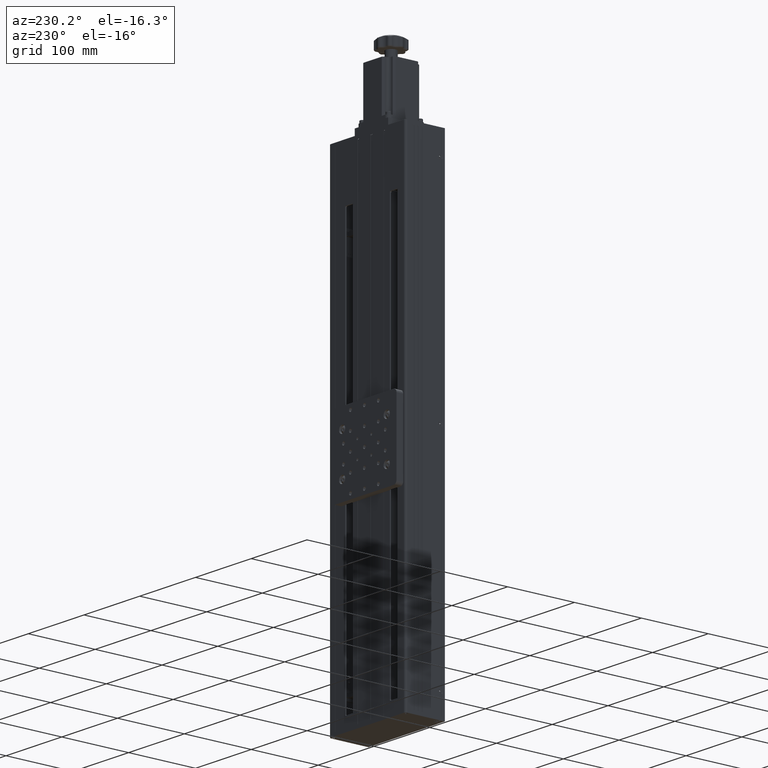
[diagram: clean part render]
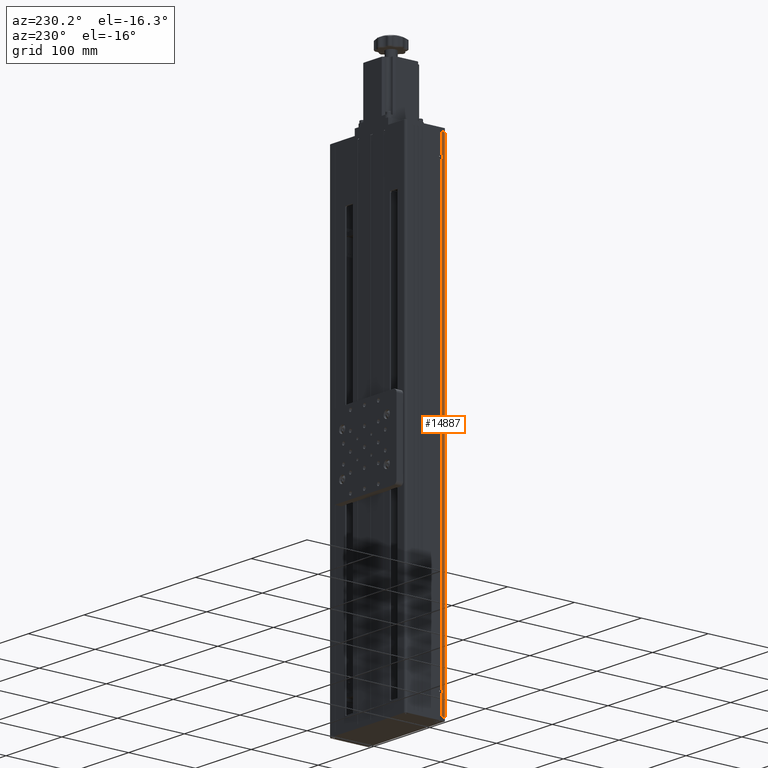
[diagram: same view with one face highlighted and labeled with its STEP entity id]
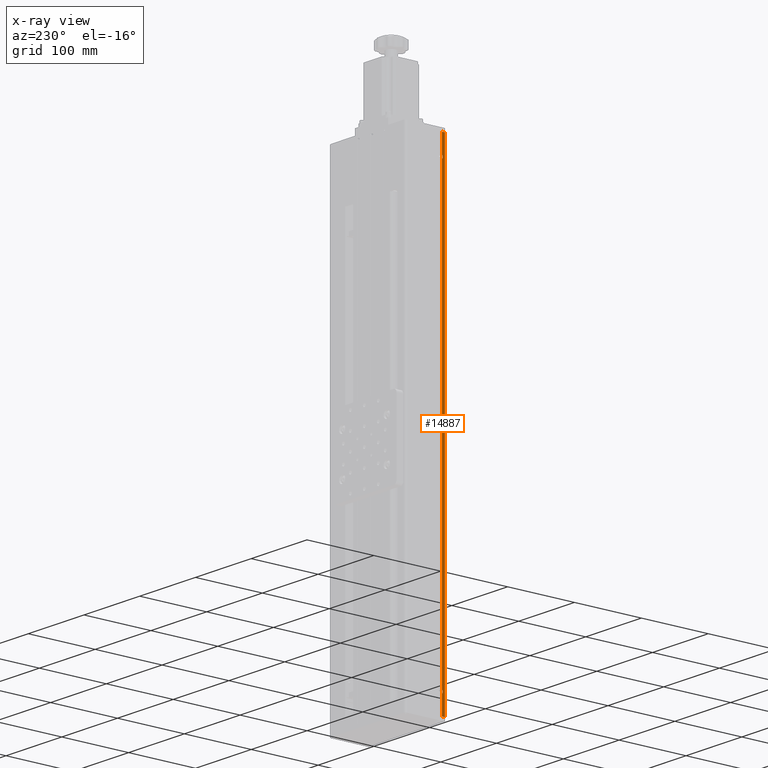
[diagram: x-ray of the same camera — body ghosted, the highlighted face saturated]
A machine part, auxiliary view. The second image highlights one B-rep face of the part: STEP entity #14887.
The next image is the same camera in x-ray: the body ghosted, the highlighted face saturated — about 0% of this face is hidden behind the body in this view.
In plain terms, the highlighted planar face has unit normal (-1, 0, 0).
Its self-contained STEP definition (entity closure, byte-faithful):
#1223 = VECTOR ( 'NONE', #38622, 1000.000000000000000 ) ;
#1336 = VERTEX_POINT ( 'NONE', #32239 ) ;
#1612 = CARTESIAN_POINT ( 'NONE',  ( -197.2356926832513000, -25.17012639631455800, -598.8342676332768000 ) ) ;
#1953 = DIRECTION ( 'NONE',  ( -1.000000000000000000, -0.0000000000000000000, -0.0000000000000000000 ) ) ;
#2036 = ORIENTED_EDGE ( 'NONE', *, *, #26629, .T. ) ;
#2300 = CIRCLE ( 'NONE', #31036, 3.149999999999986100 ) ;
#2384 = VERTEX_POINT ( 'NONE', #16938 ) ;
#2432 = ORIENTED_EDGE ( 'NONE', *, *, #8661, .T. ) ;
#3513 = CARTESIAN_POINT ( 'NONE',  ( -197.2356926832513000, -25.17012639631455800, 101.1657323667232800 ) ) ;
#3519 = CARTESIAN_POINT ( 'NONE',  ( -197.2356926832513000, -20.42012639631455800, 68.54657219598142600 ) ) ;
#4860 = DIRECTION ( 'NONE',  ( 0.0000000000000000000, 1.000000000000000000, 0.0000000000000000000 ) ) ;
#5266 = AXIS2_PLACEMENT_3D ( 'NONE', #5757, #28157, #9004 ) ;
#5386 = DIRECTION ( 'NONE',  ( -0.0000000000000000000, -0.0000000000000000000, -1.000000000000000000 ) ) ;
#5757 = CARTESIAN_POINT ( 'NONE',  ( -197.2356926832513000, -18.67012639631456100, -568.8342676332766800 ) ) ;
#6689 = DIRECTION ( 'NONE',  ( 0.0000000000000000000, 0.0000000000000000000, 1.000000000000000000 ) ) ;
#7077 = EDGE_CURVE ( 'NONE', #35715, #2384, #2300, .T. ) ;
#7163 = CARTESIAN_POINT ( 'NONE',  ( -197.2356926832513000, -20.42012639631455800, 101.1657323667232800 ) ) ;
#7345 = LINE ( 'NONE', #25291, #14921 ) ;
#7448 = FACE_OUTER_BOUND ( 'NONE', #8673, .T. ) ;
#7467 = ORIENTED_EDGE ( 'NONE', *, *, #24274, .T. ) ;
#7769 = VECTOR ( 'NONE', #5386, 1000.000000000000000 ) ;
#8661 = EDGE_CURVE ( 'NONE', #22543, #18089, #35274, .T. ) ;
#8673 = EDGE_LOOP ( 'NONE', ( #16341, #24804, #37469, #34445, #2432, #7467, #23659, #29908, #40982, #2036 ) ) ;
#9004 = DIRECTION ( 'NONE',  ( 0.0000000000000000000, 0.0000000000000000000, 1.000000000000000000 ) ) ;
#9510 = CARTESIAN_POINT ( 'NONE',  ( -197.2356926832513000, -20.42012639631455800, 101.1657323667232800 ) ) ;
#10418 = DIRECTION ( 'NONE',  ( 0.0000000000000000000, 0.0000000000000000000, 1.000000000000000000 ) ) ;
#12579 = DIRECTION ( 'NONE',  ( -1.000000000000000000, 0.0000000000000000000, 0.0000000000000000000 ) ) ;
#12742 = DIRECTION ( 'NONE',  ( -0.0000000000000000000, -0.0000000000000000000, -1.000000000000000000 ) ) ;
#12836 = CARTESIAN_POINT ( 'NONE',  ( -197.2356926832513000, -20.42012639631455800, -251.4534278040184700 ) ) ;
#13493 = VECTOR ( 'NONE', #39250, 1000.000000000000000 ) ;
#13533 = EDGE_CURVE ( 'NONE', #32910, #1336, #23252, .T. ) ;
#13776 = VECTOR ( 'NONE', #4860, 1000.000000000000000 ) ;
#14327 = VERTEX_POINT ( 'NONE', #31928 ) ;
#14887 = ADVANCED_FACE ( 'NONE', ( #7448 ), #28959, .T. ) ;
#14921 = VECTOR ( 'NONE', #28661, 1000.000000000000000 ) ;
#14936 = CARTESIAN_POINT ( 'NONE',  ( -197.2356926832513000, -20.42012639631455800, 101.1657323667232800 ) ) ;
#16306 = CARTESIAN_POINT ( 'NONE',  ( -197.2356926832513000, -18.67012639631456100, -248.8342676332767100 ) ) ;
#16322 = LINE ( 'NONE', #14936, #7769 ) ;
#16341 = ORIENTED_EDGE ( 'NONE', *, *, #41061, .F. ) ;
#16555 = VERTEX_POINT ( 'NONE', #3519 ) ;
#16938 = CARTESIAN_POINT ( 'NONE',  ( -197.2356926832513000, -20.42012639631455800, -246.2151074625349700 ) ) ;
#18089 = VERTEX_POINT ( 'NONE', #7163 ) ;
#18164 = CARTESIAN_POINT ( 'NONE',  ( -197.2356926832513000, -25.17012639631455800, 101.1657323667232800 ) ) ;
#19576 = VERTEX_POINT ( 'NONE', #41319 ) ;
#20318 = LINE ( 'NONE', #32996, #37326 ) ;
#20939 = CARTESIAN_POINT ( 'NONE',  ( -197.2356926832513000, -25.17012639631455800, -598.8342676332768000 ) ) ;
#20974 = LINE ( 'NONE', #36034, #13493 ) ;
#21174 = CARTESIAN_POINT ( 'NONE',  ( -197.2356926832513000, -18.67012639631463600, 71.16573236672324800 ) ) ;
#22022 = CARTESIAN_POINT ( 'NONE',  ( -197.2356926832513000, -25.17012639631455800, 101.1657323667232800 ) ) ;
#22543 = VERTEX_POINT ( 'NONE', #18164 ) ;
#23252 = LINE ( 'NONE', #1612, #13776 ) ;
#23659 = ORIENTED_EDGE ( 'NONE', *, *, #31775, .F. ) ;
#23736 = CIRCLE ( 'NONE', #33329, 3.149999999999999900 ) ;
#24199 = VERTEX_POINT ( 'NONE', #37909 ) ;
#24274 = EDGE_CURVE ( 'NONE', #18089, #14327, #7345, .T. ) ;
#24342 = DIRECTION ( 'NONE',  ( 0.0000000000000000000, 0.0000000000000000000, 1.000000000000000000 ) ) ;
#24804 = ORIENTED_EDGE ( 'NONE', *, *, #33748, .T. ) ;
#25291 = CARTESIAN_POINT ( 'NONE',  ( -197.2356926832513000, -20.42012639631455800, 101.1657323667232800 ) ) ;
#25562 = AXIS2_PLACEMENT_3D ( 'NONE', #3513, #25851, #6689 ) ;
#25851 = DIRECTION ( 'NONE',  ( -1.000000000000000000, 0.0000000000000000000, 0.0000000000000000000 ) ) ;
#26629 = EDGE_CURVE ( 'NONE', #35715, #24199, #20974, .T. ) ;
#28157 = DIRECTION ( 'NONE',  ( -1.000000000000000000, -0.0000000000000000000, -0.0000000000000000000 ) ) ;
#28661 = DIRECTION ( 'NONE',  ( -0.0000000000000000000, -0.0000000000000000000, -1.000000000000000000 ) ) ;
#28959 = PLANE ( 'NONE',  #25562 ) ;
#29287 = VECTOR ( 'NONE', #12742, 1000.000000000000000 ) ;
#29908 = ORIENTED_EDGE ( 'NONE', *, *, #40614, .T. ) ;
#30298 = LINE ( 'NONE', #9510, #29287 ) ;
#31036 = AXIS2_PLACEMENT_3D ( 'NONE', #16306, #12579, #10418 ) ;
#31775 = EDGE_CURVE ( 'NONE', #16555, #14327, #23736, .T. ) ;
#31928 = CARTESIAN_POINT ( 'NONE',  ( -197.2356926832513000, -20.42012639631455400, 73.78489253746506900 ) ) ;
#32239 = CARTESIAN_POINT ( 'NONE',  ( -197.2356926832513000, -20.42012639631455800, -598.8342676332768000 ) ) ;
#32837 = DIRECTION ( 'NONE',  ( -0.0000000000000000000, -0.0000000000000000000, -1.000000000000000000 ) ) ;
#32910 = VERTEX_POINT ( 'NONE', #20939 ) ;
#32996 = CARTESIAN_POINT ( 'NONE',  ( -197.2356926832513000, -25.17012639631455800, 101.1657323667232800 ) ) ;
#33329 = AXIS2_PLACEMENT_3D ( 'NONE', #21174, #1953, #24342 ) ;
#33748 = EDGE_CURVE ( 'NONE', #19576, #1336, #30298, .T. ) ;
#33923 = EDGE_CURVE ( 'NONE', #22543, #32910, #20318, .T. ) ;
#34445 = ORIENTED_EDGE ( 'NONE', *, *, #33923, .F. ) ;
#35274 = LINE ( 'NONE', #22022, #1223 ) ;
#35715 = VERTEX_POINT ( 'NONE', #12836 ) ;
#36034 = CARTESIAN_POINT ( 'NONE',  ( -197.2356926832513000, -20.42012639631455800, 101.1657323667232800 ) ) ;
#37326 = VECTOR ( 'NONE', #32837, 1000.000000000000000 ) ;
#37469 = ORIENTED_EDGE ( 'NONE', *, *, #13533, .F. ) ;
#37909 = CARTESIAN_POINT ( 'NONE',  ( -197.2356926832513000, -20.42012639631455400, -566.2151074625348900 ) ) ;
#38622 = DIRECTION ( 'NONE',  ( 0.0000000000000000000, 1.000000000000000000, 0.0000000000000000000 ) ) ;
#39250 = DIRECTION ( 'NONE',  ( -0.0000000000000000000, -0.0000000000000000000, -1.000000000000000000 ) ) ;
#40614 = EDGE_CURVE ( 'NONE', #16555, #2384, #16322, .T. ) ;
#40982 = ORIENTED_EDGE ( 'NONE', *, *, #7077, .F. ) ;
#41061 = EDGE_CURVE ( 'NONE', #19576, #24199, #41252, .T. ) ;
#41252 = CIRCLE ( 'NONE', #5266, 3.149999999999986100 ) ;
#41319 = CARTESIAN_POINT ( 'NONE',  ( -197.2356926832513000, -20.42012639631455800, -571.4534278040184700 ) ) ;